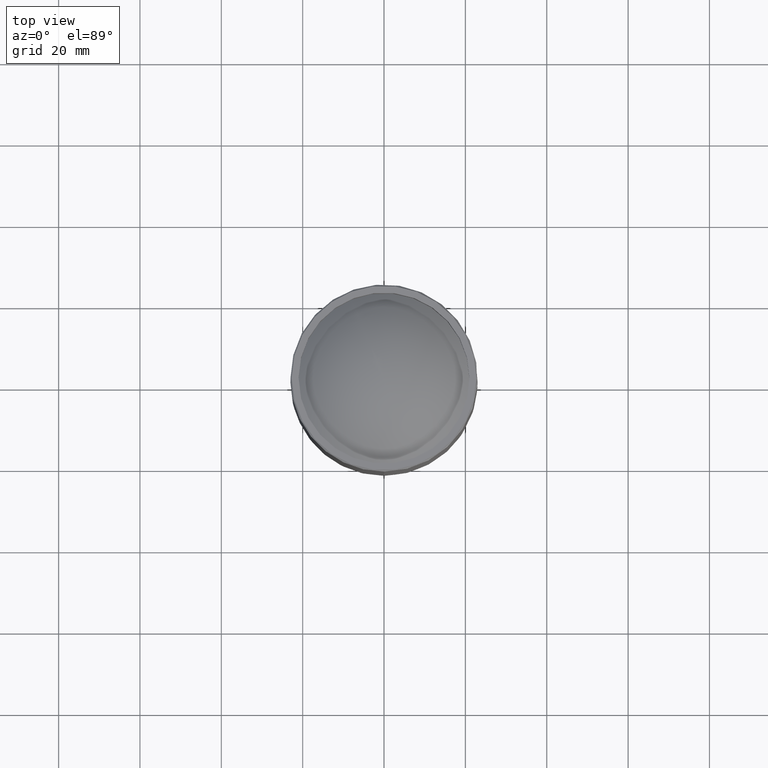
[diagram: clean part render]
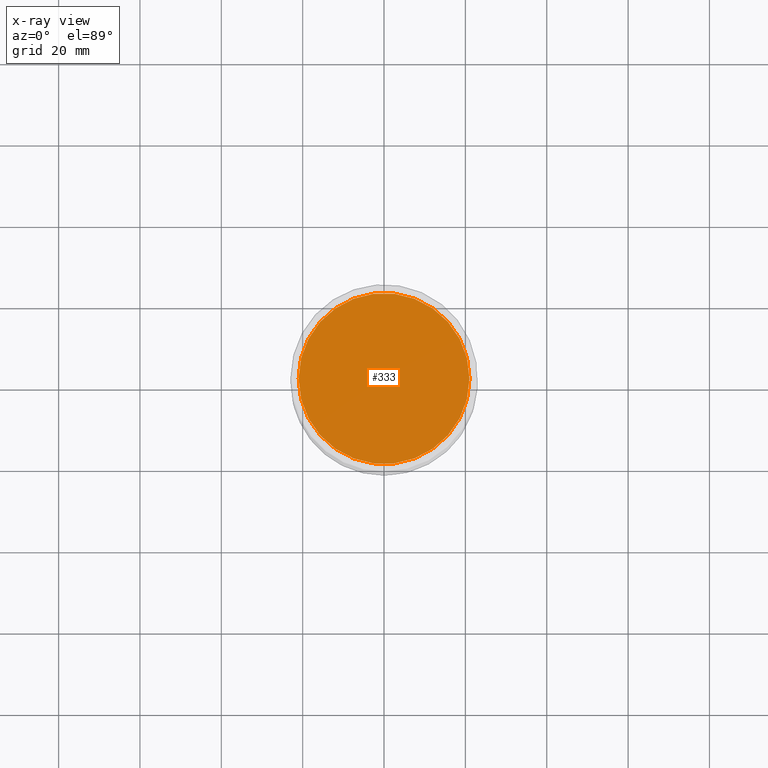
[diagram: x-ray — body ghosted, one internal face saturated and labeled with its STEP entity id]
A machine part, top view, then the same camera in x-ray: the body is ghosted and one INTERNAL B-rep face — a face not visible from any outside direction — is saturated and labeled: STEP entity #333.
In plain terms, the highlighted planar face has unit normal (0, 0, 1).
Its self-contained STEP definition (entity closure, byte-faithful):
#84 = AXIS2_PLACEMENT_3D ( 'NONE', #557, #472, #812 ) ;
#88 = ORIENTED_EDGE ( 'NONE', *, *, #141, .T. ) ;
#141 = EDGE_CURVE ( 'NONE', #708, #708, #591, .T. ) ;
#169 = AXIS2_PLACEMENT_3D ( 'NONE', #931, #598, #339 ) ;
#265 = PLANE ( 'NONE',  #169 ) ;
#333 = ADVANCED_FACE ( 'NONE', ( #679 ), #265, .T. ) ;
#339 = DIRECTION ( 'NONE',  ( 1.000000000000000000, 0.000000000000000000, -0.000000000000000000 ) ) ;
#472 = DIRECTION ( 'NONE',  ( 0.000000000000000000, 0.000000000000000000, 1.000000000000000000 ) ) ;
#557 = CARTESIAN_POINT ( 'NONE',  ( 0.000000000000000000, 0.000000000000000000, -959.0000000000000000 ) ) ;
#591 = CIRCLE ( 'NONE', #84, 21.00000000000000000 ) ;
#598 = DIRECTION ( 'NONE',  ( 0.000000000000000000, 0.000000000000000000, 1.000000000000000000 ) ) ;
#679 = FACE_OUTER_BOUND ( 'NONE', #959, .T. ) ;
#708 = VERTEX_POINT ( 'NONE', #1031 ) ;
#812 = DIRECTION ( 'NONE',  ( 1.000000000000000000, 0.000000000000000000, 0.000000000000000000 ) ) ;
#931 = CARTESIAN_POINT ( 'NONE',  ( 0.000000000000000000, 0.000000000000000000, -959.0000000000000000 ) ) ;
#959 = EDGE_LOOP ( 'NONE', ( #88 ) ) ;
#1031 = CARTESIAN_POINT ( 'NONE',  ( 21.00000000000000000, 0.000000000000000000, -959.0000000000000000 ) ) ;